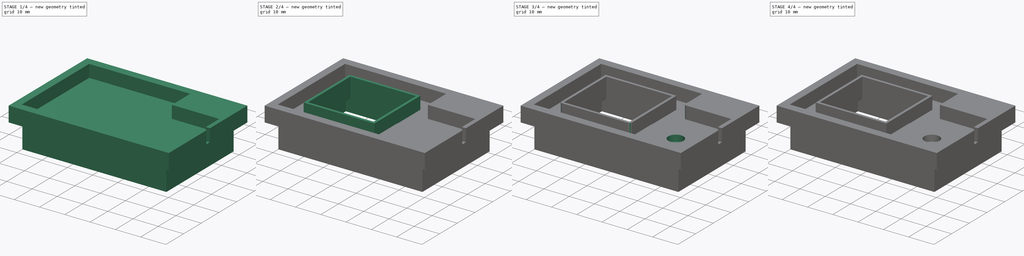
[diagram: build sequence overview — one tinted view per stage of 4, left to right]
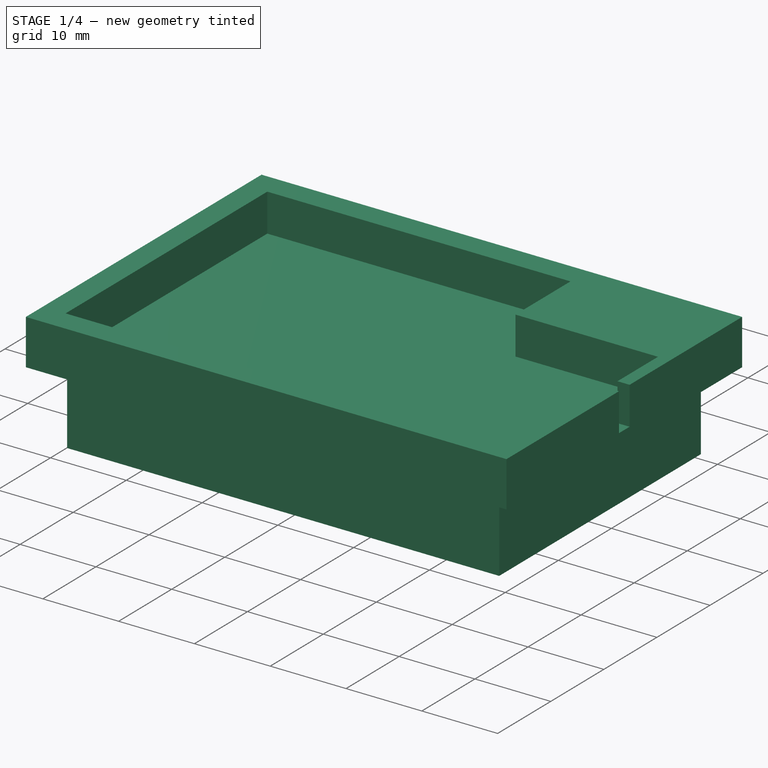
[diagram: stage 1 of 4 — iso view after this stage's code; geometry added in this stage tinted green]
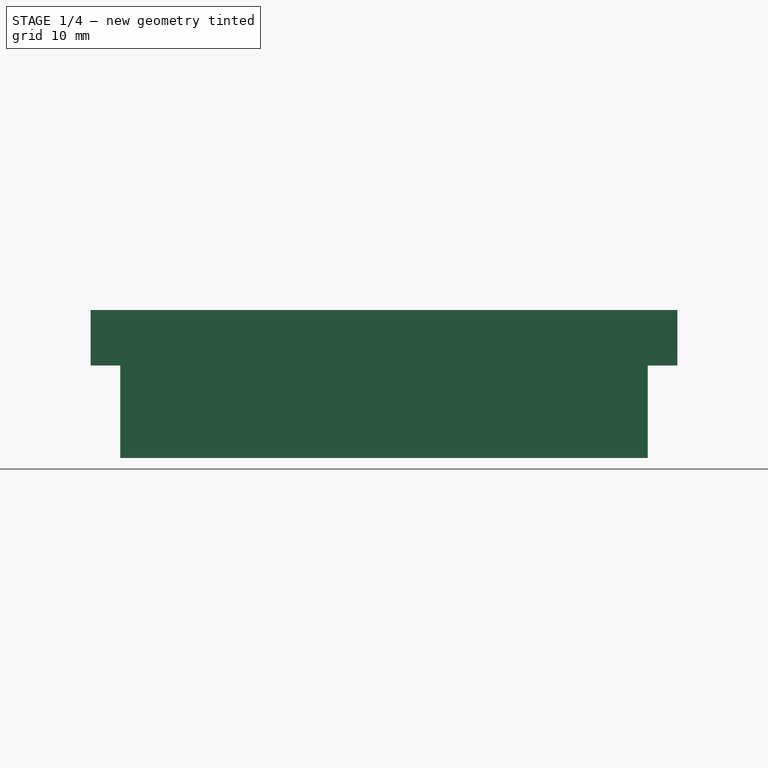
[diagram: stage 1 of 4 — front view after this stage's code; geometry added in this stage tinted green]
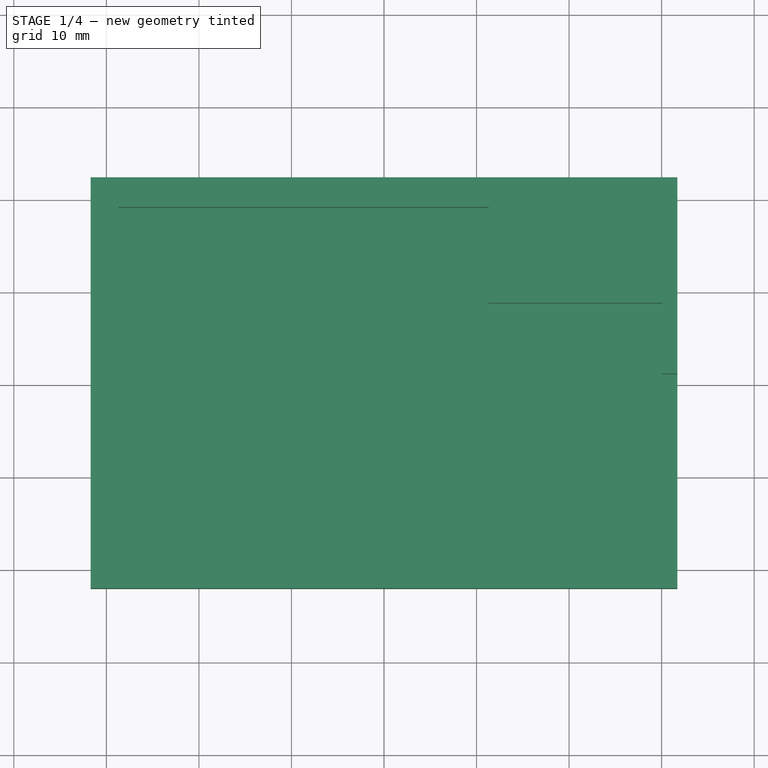
[diagram: stage 1 of 4 — top view after this stage's code; geometry added in this stage tinted green]
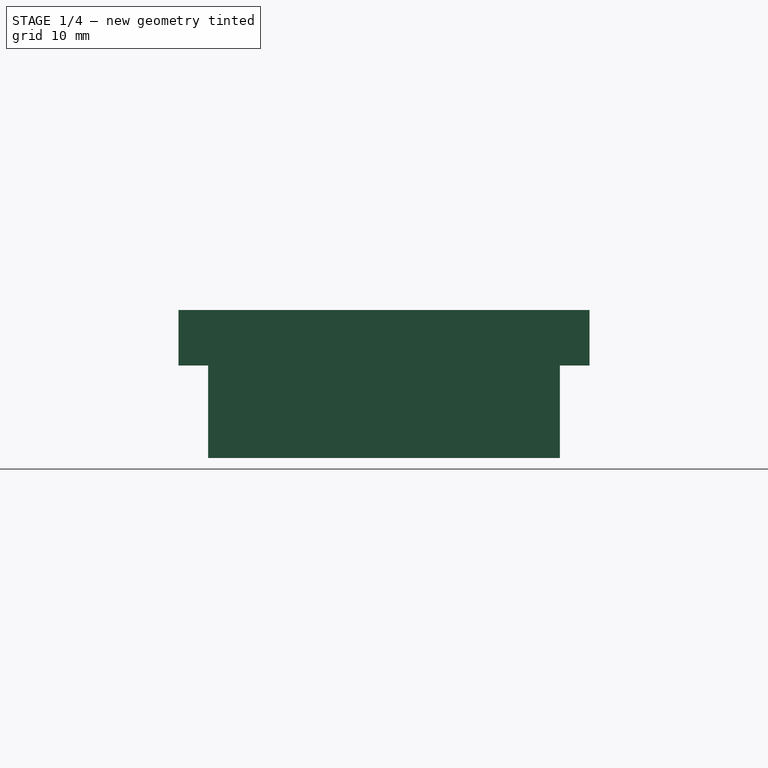
[diagram: stage 1 of 4 — right view after this stage's code; geometry added in this stage tinted green]
FCSTD DOCUMENT  (FreeCAD 0.19R24291 (Git))
Label: bruker7t_fus_single_rectangle_coil3
License: All rights reserved
LicenseURL: http://en.wikipedia.org/wiki/All_rights_reserved
objects: Sketcher::SketchObject×8, PartDesign::Pocket×5, PartDesign::Pad×3, PartDesign::Fillet×3, Part::FeaturePython×1, Part::Cut×1, PartDesign::Body×1
note: 33 computed .brp shape members not serialized (recipe doc carries the construction recipe); baked Part::Feature solids carry a one-line shape summary decoded from their .brp

FEATURE [Sketcher::SketchObject] Sketch
  FullyConstrained = true
  MapMode = 5
  Support = -> [XY_Plane001]
  sketch-geometry (4):
    g0: LineSegment StartX=-31.7 StartY=22.2 StartZ=0 EndX=31.7 EndY=22.2 EndZ=0
    g1: LineSegment StartX=31.7 StartY=22.2 StartZ=0 EndX=31.7 EndY=-22.2 EndZ=0
    g2: LineSegment StartX=31.7 StartY=-22.2 StartZ=0 EndX=-31.7 EndY=-22.2 EndZ=0
    g3: LineSegment StartX=-31.7 StartY=-22.2 StartZ=0 EndX=-31.7 EndY=22.2 EndZ=0
  constraints (10):
    c: Coincident(g0,g1)
    c: Coincident(g1,g2)
    c: Coincident(g2,g3)
    c: Coincident(g3,g0)
    c: Horizontal(g2)
    c: Vertical(g1)
    c: Symmetric(g2,g0,g-1)
    c: Symmetric(g0,g0,g-2)
    c: DistanceX(g0,g0) = 63.4
    c: DistanceY(g3,g3) = 44.4
FEATURE [PartDesign::Pad] Pad  label="top_pad"
  Direction = (1,1,1)
  Length = 6
  Length2 = 0
  Profile = -> Sketch
  Refine = true
  Type = 0
FEATURE [Sketcher::SketchObject] Sketch001
  ExternalGeometry = -> [Pad]
  FullyConstrained = true
  MapMode = 5
  Placement = pos=(0,0,6) rot=(0,0,1;0rad)
  Support = -> [Pad]
  sketch-geometry (12):
    g0: LineSegment StartX=30.1 StartY=1 StartZ=0 EndX=30.1 EndY=8.63 EndZ=0
    g1: LineSegment StartX=30.1 StartY=8.63 StartZ=0 EndX=11.3 EndY=8.63 EndZ=0
    g2: LineSegment StartX=11.3 StartY=-8.63 StartZ=0 EndX=30.1 EndY=-8.63 EndZ=0
    g3: LineSegment StartX=30.1 StartY=-8.63 StartZ=0 EndX=30.1 EndY=-1 EndZ=0
    g4: LineSegment StartX=30.1 StartY=-1 StartZ=0 EndX=42.1 EndY=-1 EndZ=0
    g5: LineSegment StartX=42.1 StartY=-1 StartZ=0 EndX=42.1 EndY=1 EndZ=0
    g6: LineSegment StartX=42.1 StartY=1 StartZ=0 EndX=30.1 EndY=1 EndZ=0
    g7: LineSegment StartX=11.3 StartY=-8.63 StartZ=0 EndX=11.3 EndY=-19 EndZ=0
    g8: LineSegment StartX=11.3 StartY=-19 StartZ=0 EndX=-28.7 EndY=-19 EndZ=0
    g9: LineSegment StartX=-28.7 StartY=-19 StartZ=0 EndX=-28.7 EndY=19 EndZ=0
    g10: LineSegment StartX=-28.7 StartY=19 StartZ=0 EndX=11.3 EndY=19 EndZ=0
    g11: LineSegment StartX=11.3 StartY=19 StartZ=0 EndX=11.3 EndY=8.63 EndZ=0
  constraints (35):
    c: Coincident(g0,g1)
    c: Horizontal(g1)
    c: Horizontal(g2)
    c: Coincident(g2,g3)
    c: Coincident(g3,g4)
    c: Horizontal(g4)
    c: Coincident(g4,g5)
    c: Vertical(g5)
    c: Coincident(g5,g6)
    c: Horizontal(g6)
    c: Vertical(g3)
    c: Vertical(g0)
    c: Equal(g3,g0)
    c: Equal(g1,g2)
    c: DistanceY(g5,g5) = 2
    c: DistanceX(g4,g4) = 12
    c: DistanceX(g2,g2) = 18.8
    c: Coincident(g6,g0)
    c: Coincident(g2,g7)
    c: Vertical(g7)
    c: Coincident(g7,g8)
    c: Horizontal(g8)
    c: Coincident(g8,g9)
    c: Coincident(g9,g10)
    c: Horizontal(g10)
    c: Coincident(g10,g11)
    c: Coincident(g11,g1)
    c: Vertical(g11)
    c: DistanceX(g0,g-3) = 1.6
    c: DistanceY(g0,g-3) = 13.57
    c: DistanceY(g-4,g2) = 13.57
    c: DistanceX(g2,g-4) = 1.6
    c: DistanceX(g-3,g9) = 3
    c: DistanceY(g9,g9) = 38
    c: Symmetric(g8,g9,g-1)
FEATURE [PartDesign::Pocket] Pocket  label="top_pocket"
  BaseFeature = -> Pad
  Length = 5
  Length2 = 100
  Profile = -> Sketch001
  Refine = true
  Type = 0
FEATURE [Sketcher::SketchObject] Sketch002
  FullyConstrained = true
  MapMode = 5
  Placement = pos=(0,0,0) rot=(1,0,0;3.14159rad)
  Support = -> [Pocket]
  sketch-geometry (4):
    g0: LineSegment StartX=-28.5 StartY=19 StartZ=0 EndX=28.5 EndY=19 EndZ=0
    g1: LineSegment StartX=28.5 StartY=19 StartZ=0 EndX=28.5 EndY=-19 EndZ=0
    g2: LineSegment StartX=28.5 StartY=-19 StartZ=0 EndX=-28.5 EndY=-19 EndZ=0
    g3: LineSegment StartX=-28.5 StartY=-19 StartZ=0 EndX=-28.5 EndY=19 EndZ=0
  constraints (10):
    c: Coincident(g0,g1)
    c: Coincident(g1,g2)
    c: Coincident(g2,g3)
    c: Coincident(g3,g0)
    c: Horizontal(g2)
    c: Vertical(g1)
    c: Symmetric(g2,g0,g-1)
    c: Symmetric(g0,g0,g-2)
    c: DistanceY(g3,g3) = 38
    c: DistanceX(g2,g2) = 57
FEATURE [PartDesign::Pad] Pad001  label="bottom_box_pad"
  BaseFeature = -> Pocket
  Direction = (1,1,1)
  Length = 10
  Length2 = 100
  Profile = -> Sketch002
  Refine = true
  Type = 0
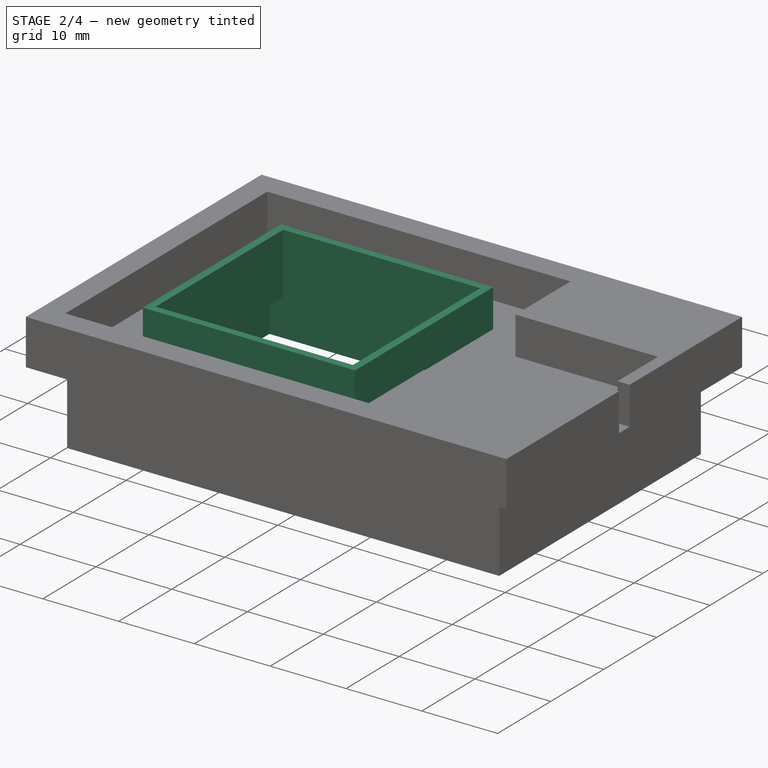
[diagram: stage 2 of 4 — iso view after this stage's code; geometry added in this stage tinted green]
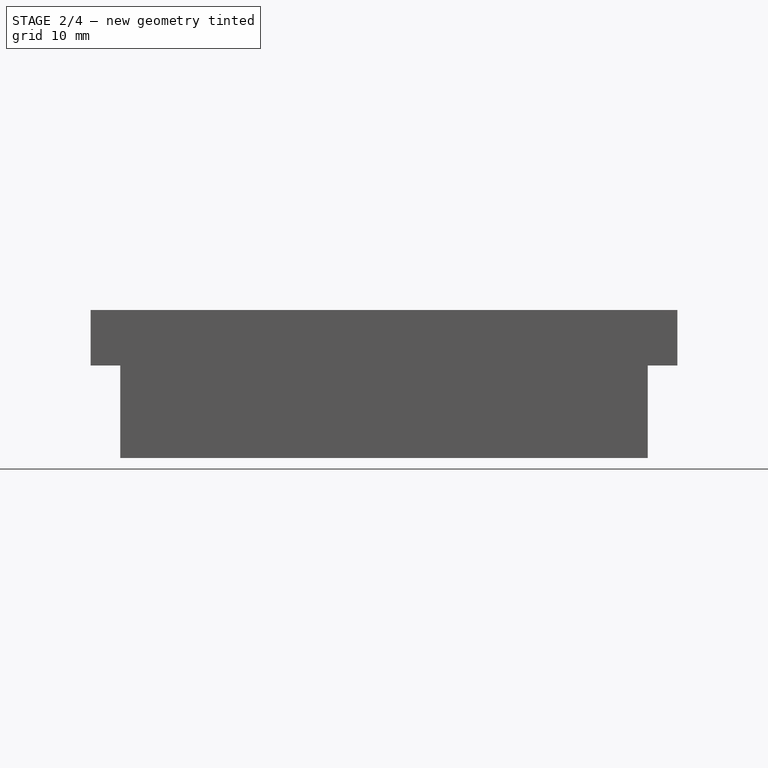
[diagram: stage 2 of 4 — front view after this stage's code; geometry added in this stage tinted green]
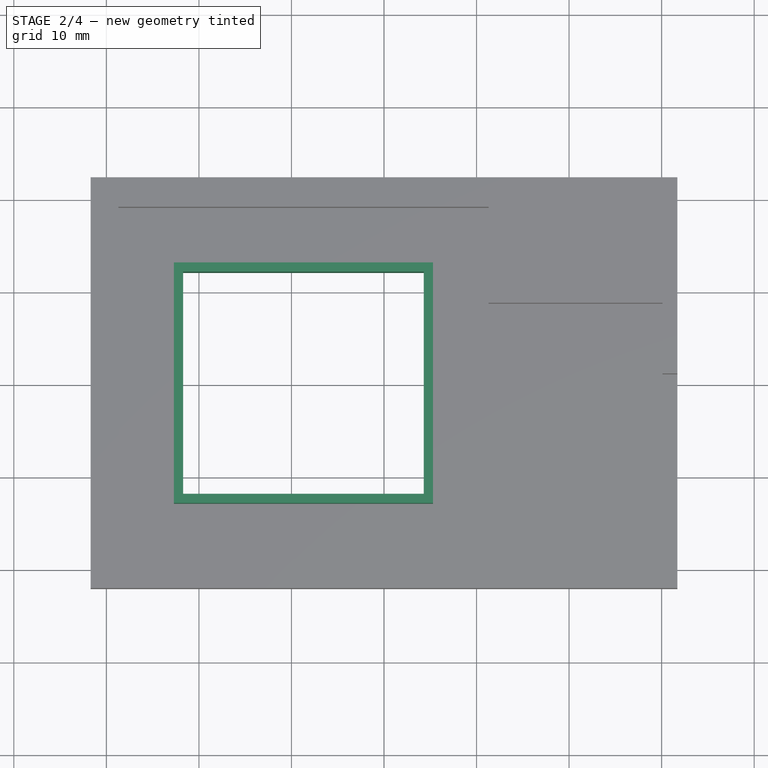
[diagram: stage 2 of 4 — top view after this stage's code; geometry added in this stage tinted green]
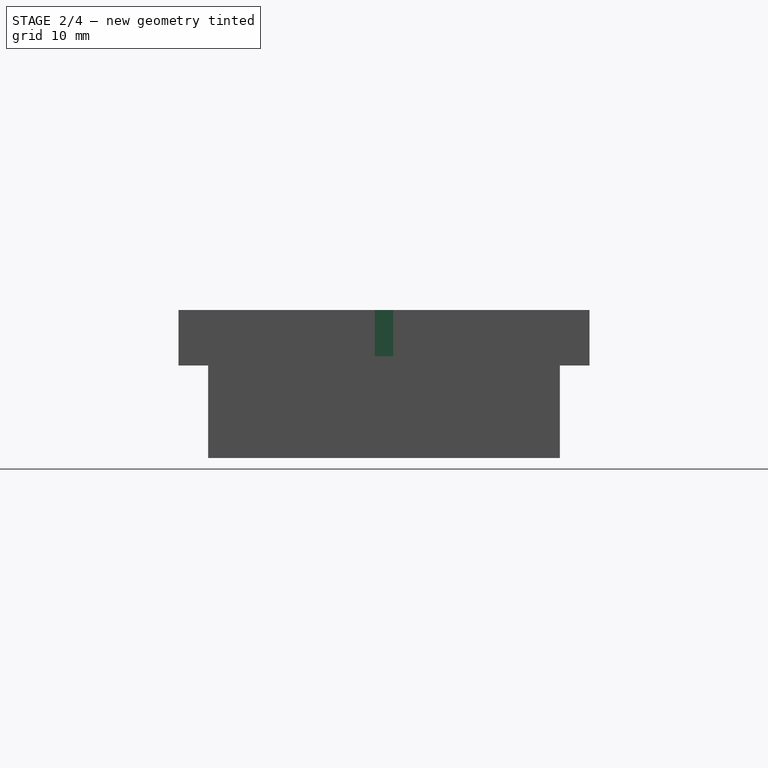
[diagram: stage 2 of 4 — right view after this stage's code; geometry added in this stage tinted green]
FEATURE [Sketcher::SketchObject] Sketch010
  AttachmentOffset = pos=(0,0,-2) rot=(0,0,1;0rad)
  FullyConstrained = false
  MapMode = 5
  Placement = pos=(0,0,-2) rot=(0,0,1;0rad)
  Support = -> [XY_Plane001]
  sketch-geometry (4):
    g0: LineSegment StartX=-27.3341 StartY=17.4424 StartZ=0 EndX=26.2659 EndY=17.4424 EndZ=0
    g1: LineSegment StartX=26.2659 StartY=17.4424 StartZ=0 EndX=26.2659 EndY=-17.1576 EndZ=0
    g2: LineSegment StartX=26.2659 StartY=-17.1576 StartZ=0 EndX=-27.3341 EndY=-17.1576 EndZ=0
    g3: LineSegment StartX=-27.3341 StartY=-17.1576 StartZ=0 EndX=-27.3341 EndY=17.4424 EndZ=0
  constraints (10):
    c: Coincident(g0,g1)
    c: Coincident(g1,g2)
    c: Coincident(g2,g3)
    c: Coincident(g3,g0)
    c: Horizontal(g0)
    c: Horizontal(g2)
    c: Vertical(g1)
    c: Vertical(g3)
    c: DistanceX(g0,g0) = 53.6
    c: DistanceY(g1,g1) = 34.6
FEATURE [PartDesign::Pocket] Pocket005  label="bottom_box_pocket"
  BaseFeature = -> Pad001
  Length = 8
  Length2 = 100
  Profile = -> Sketch010
  Refine = true
  Type = 0
FEATURE [Sketcher::SketchObject] Sketch006
  ExternalGeometry = -> [Pocket005]
  FullyConstrained = true
  MapMode = 5
  Support = -> [XY_Plane001]
  sketch-geometry (4):
    g0: LineSegment StartX=-22.7 StartY=13 StartZ=0 EndX=5.3 EndY=13 EndZ=0
    g1: LineSegment StartX=5.3 StartY=13 StartZ=0 EndX=5.3 EndY=-13 EndZ=0
    g2: LineSegment StartX=5.3 StartY=-13 StartZ=0 EndX=-22.7 EndY=-13 EndZ=0
    g3: LineSegment StartX=-22.7 StartY=-13 StartZ=0 EndX=-22.7 EndY=13 EndZ=0
  constraints (11):
    c: Coincident(g0,g1)
    c: Coincident(g1,g2)
    c: Coincident(g2,g3)
    c: Coincident(g3,g0)
    c: Horizontal(g0)
    c: Horizontal(g2)
    c: Vertical(g3)
    c: Symmetric(g0,g1,g-1)
    c: DistanceY(g1,g1) = 26
    c: DistanceX(g2,g2) = 28
    c: DistanceX(g-3,g0) = 9
FEATURE [PartDesign::Pad] Pad002  label="hole_pad"
  BaseFeature = -> Pocket005
  Direction = (1,1,1)
  Length = 6
  Length2 = 100
  Profile = -> Sketch006
  Refine = true
  Type = 0
FEATURE [Sketcher::SketchObject] Sketch007
  AttachmentOffset = pos=(0,0,6) rot=(0,0,1;0rad)
  ExternalGeometry = -> [Pad001,Pad002]
  FullyConstrained = true
  MapMode = 5
  Placement = pos=(0,0,6) rot=(0,0,1;0rad)
  Support = -> [XY_Plane001]
  sketch-geometry (4):
    g0: LineSegment StartX=-21.7 StartY=12 StartZ=0 EndX=4.3 EndY=12 EndZ=0
    g1: LineSegment StartX=4.3 StartY=12 StartZ=0 EndX=4.3 EndY=-12 EndZ=0
    g2: LineSegment StartX=4.3 StartY=-12 StartZ=0 EndX=-21.7 EndY=-12 EndZ=0
    g3: LineSegment StartX=-21.7 StartY=-12 StartZ=0 EndX=-21.7 EndY=12 EndZ=0
  constraints (12):
    c: Coincident(g0,g1)
    c: Coincident(g1,g2)
    c: Coincident(g2,g3)
    c: Coincident(g3,g0)
    c: Horizontal(g0)
    c: Horizontal(g2)
    c: Vertical(g1)
    c: Vertical(g3)
    c: DistanceX(g0,g-6) = 1
    c: DistanceX(g-7,g0) = 1
    c: DistanceY(g0,g-6) = 1
    c: DistanceY(g-8,g1) = 1
FEATURE [PartDesign::Pocket] Pocket002  label="hole_pocket"
  BaseFeature = -> Pad002
  Length = 6
  Length2 = 100
  Profile = -> Sketch007
  Refine = true
  Type = 1
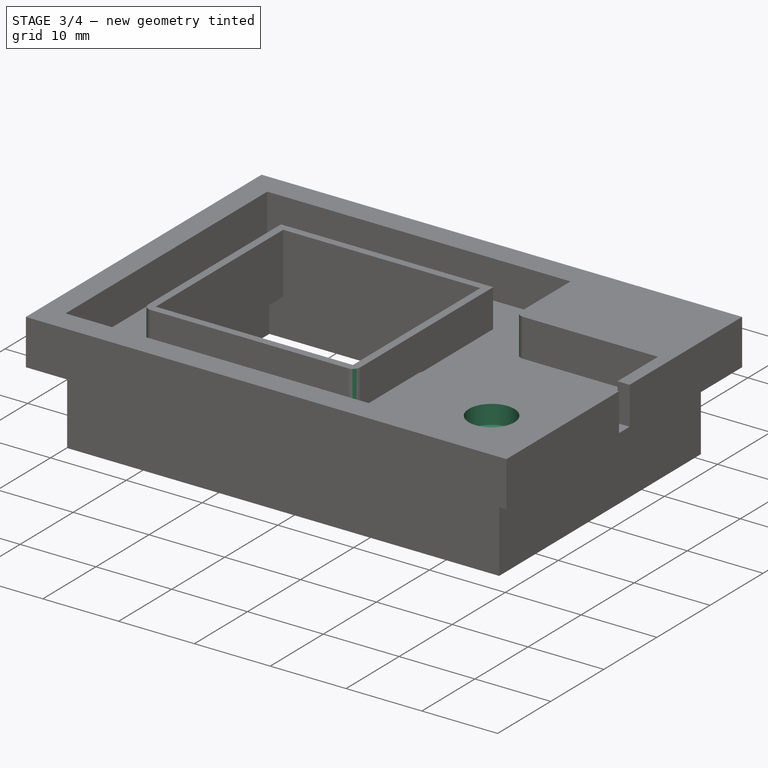
[diagram: stage 3 of 4 — iso view after this stage's code; geometry added in this stage tinted green]
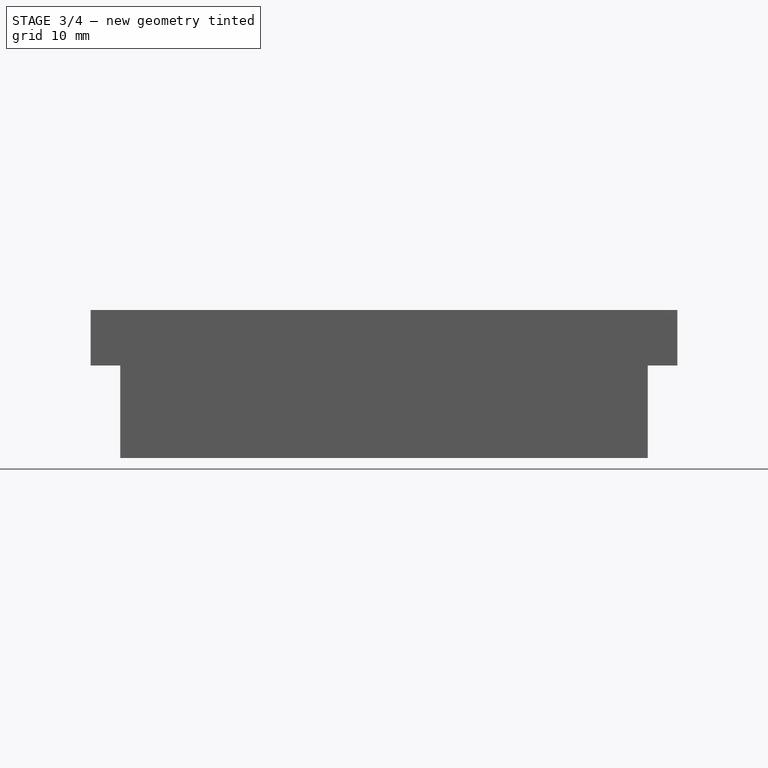
[diagram: stage 3 of 4 — front view after this stage's code; geometry added in this stage tinted green]
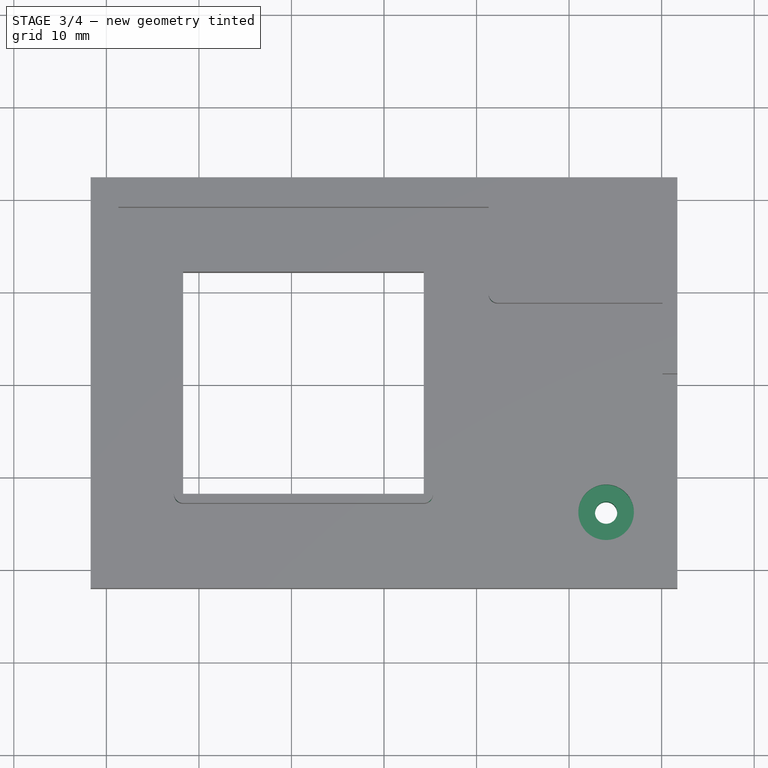
[diagram: stage 3 of 4 — top view after this stage's code; geometry added in this stage tinted green]
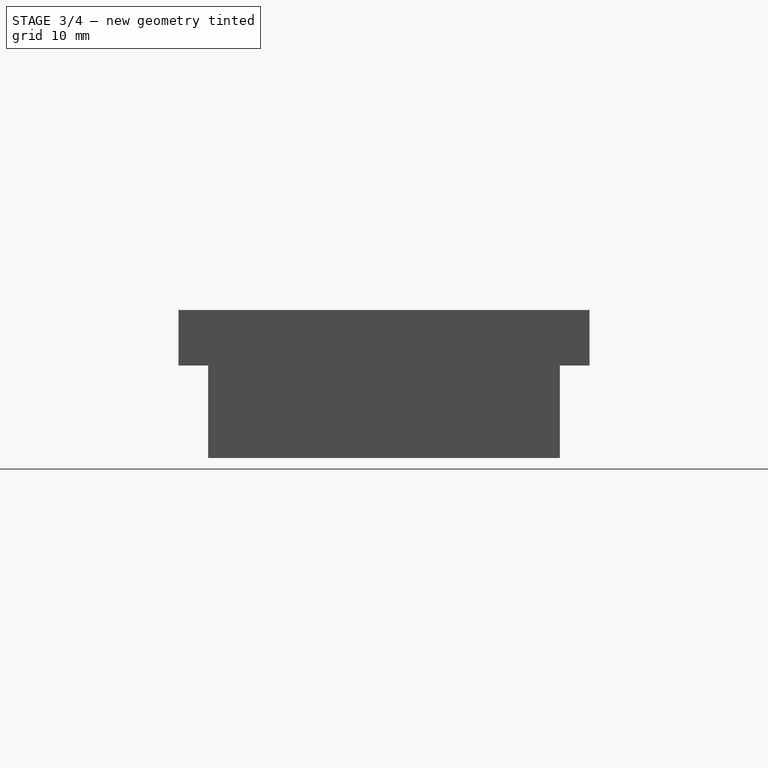
[diagram: stage 3 of 4 — right view after this stage's code; geometry added in this stage tinted green]
FEATURE [PartDesign::Pocket] Pocket003  label="instilling_hole"
  BaseFeature = -> Pocket002
  Length = 5
  Length2 = 100
  Profile = -> Sketch008
  Refine = true
  Type = 1
FEATURE [PartDesign::Pocket] Pocket004  label="instilling_cap"
  BaseFeature = -> Pocket003
  Length = 2.5
  Length2 = 100
  Profile = -> Sketch009
  Refine = true
  Type = 0
FEATURE [PartDesign::Fillet] Fillet
  Base = -> Pocket004 [Edge72,Edge74]
  BaseFeature = -> Pocket004
  Radius = 1
  Refine = true
  SupportTransform = false
FEATURE [PartDesign::Fillet] Fillet001
  Base = -> Fillet [Edge31,Edge52]
  BaseFeature = -> Fillet
  Radius = 1
  Refine = true
  SupportTransform = false
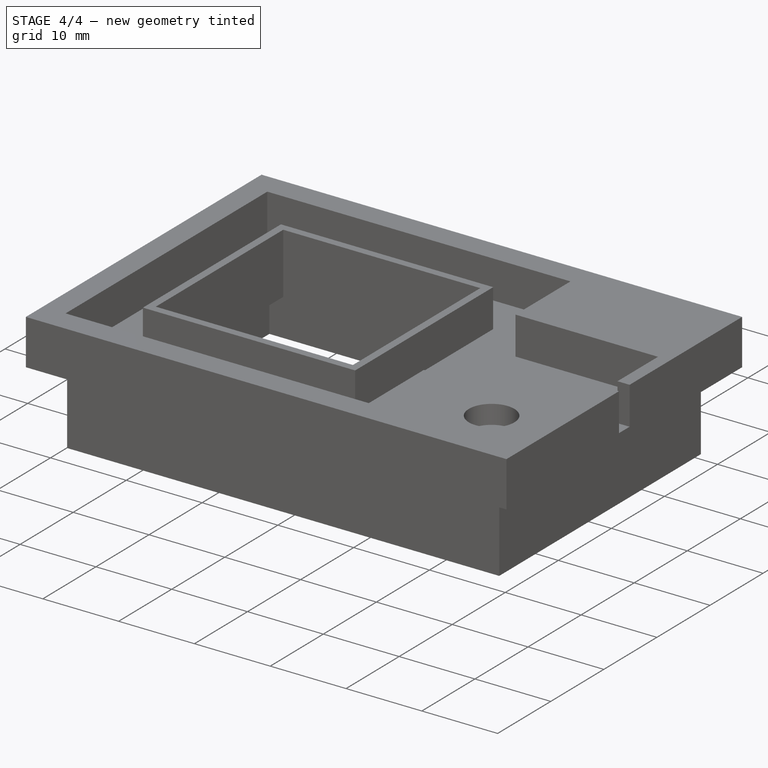
[diagram: stage 4 of 4 — iso view after this stage's code; geometry added in this stage tinted green]
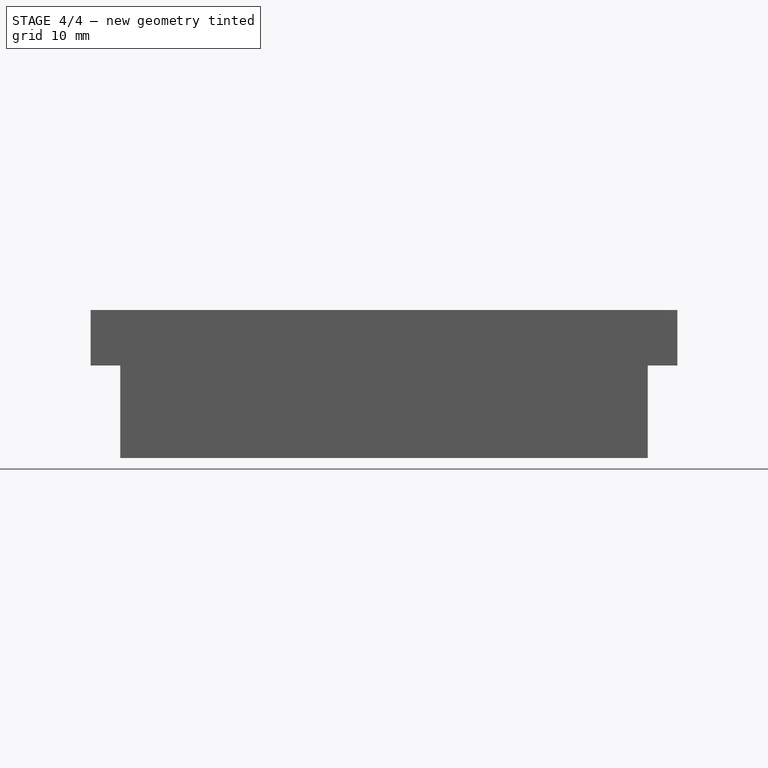
[diagram: stage 4 of 4 — front view after this stage's code; geometry added in this stage tinted green]
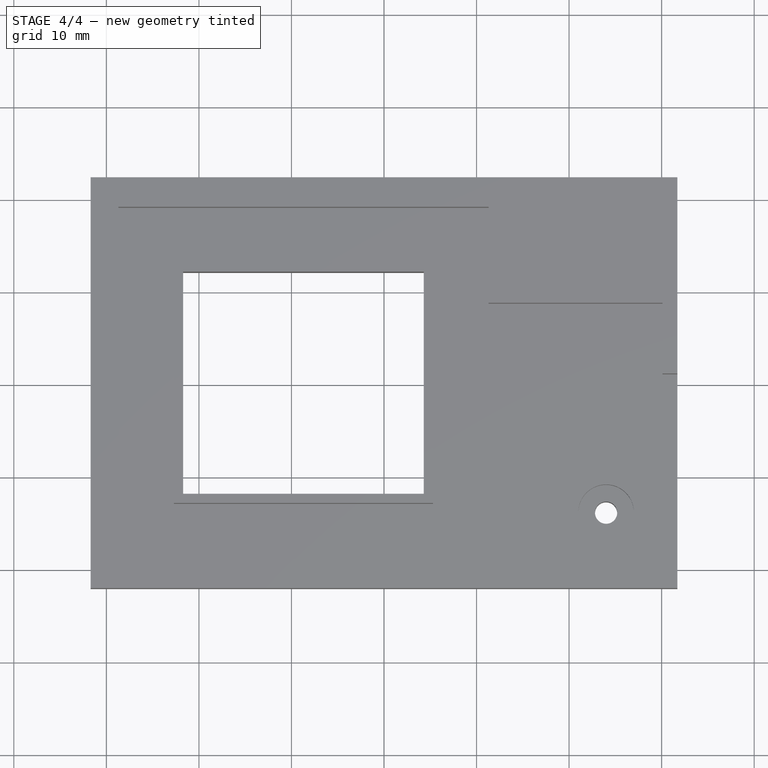
[diagram: stage 4 of 4 — top view after this stage's code; geometry added in this stage tinted green]
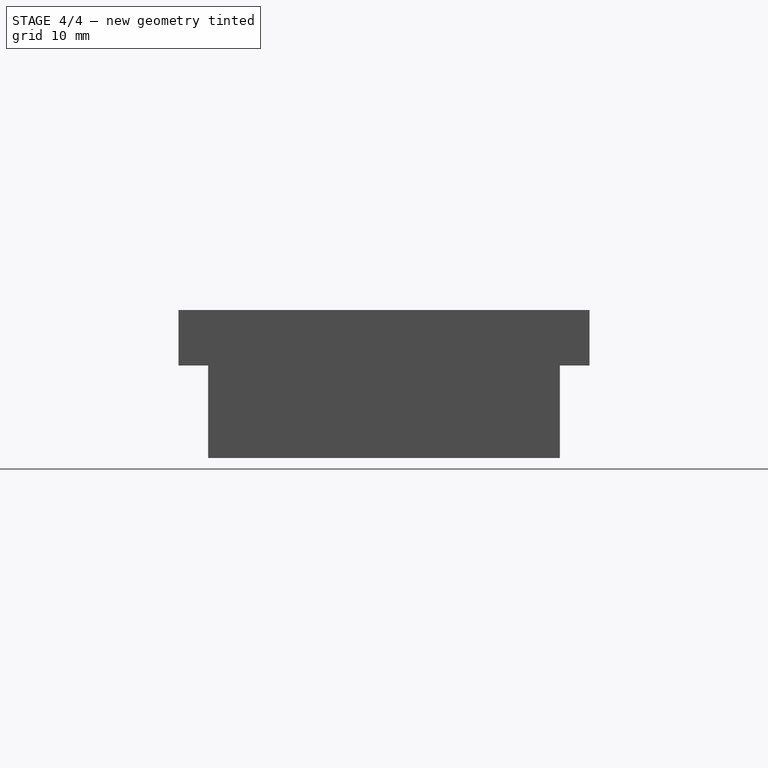
[diagram: stage 4 of 4 — right view after this stage's code; geometry added in this stage tinted green]
FEATURE [Sketcher::SketchObject] Sketch008
  AttachmentOffset = pos=(0,0,6) rot=(0,0,1;0rad)
  FullyConstrained = true
  MapMode = 5
  Placement = pos=(0,0,6) rot=(0,0,1;0rad)
  Support = -> [XY_Plane001]
  sketch-geometry (1):
    g0: Circle CenterX=24 CenterY=-14 CenterZ=0 NormalX=0 NormalY=0 NormalZ=1 AngleXU=0 Radius=1.2
  constraints (3):
    c: DistanceY(g0,g-1) = 14
    c: DistanceX(g-1,g0) = 24
    c: Radius(g0) = 1.2
FEATURE [Sketcher::SketchObject] Sketch009
  AttachmentOffset = pos=(0,0,6) rot=(0,0,1;0rad)
  FullyConstrained = true
  MapMode = 5
  Placement = pos=(0,0,6) rot=(0,0,1;0rad)
  Support = -> [XY_Plane001]
  sketch-geometry (1):
    g0: Circle CenterX=24 CenterY=-14 CenterZ=0 NormalX=0 NormalY=0 NormalZ=1 AngleXU=0 Radius=3
  constraints (3):
    c: DistanceY(g0,g-1) = 14
    c: DistanceX(g-1,g0) = 24
    c: Radius(g0) = 3
FEATURE [Part::FeaturePython] ThreadedRod  label="M3x10.0-ThreadedRod"  # Fasteners workbench fastener (typed FeaturePython)
  Placement = pos=(24,-14,6) rot=(0,0,1;0rad)
  diameter = 4
  invert = false
  length = 10
  matchOuter = false
  offset = 0
  thread = true
FEATURE [Part::Cut] Cut
  Base = -> Pocket004
  Refine = true
  Tool = -> ThreadedRod
FEATURE [PartDesign::Fillet] Fillet002
  Base = -> Fillet001 [Edge54,Edge58]
  BaseFeature = -> Fillet001
  Radius = 1
  Refine = true
  SupportTransform = false
FEATURE [PartDesign::Body] Body
  Group = -> [Sketch,Pad,Sketch001,Pocket,Sketch002,Pad001,Pocket005,Sketch010,Sketch006,Pad002,Sketch007,Pocket002,Sketch008,Pocket003,Sketch009,Pocket004,Fillet,Fillet001,Fillet002]
  Origin = -> Origin001
  Tip = -> Fillet002
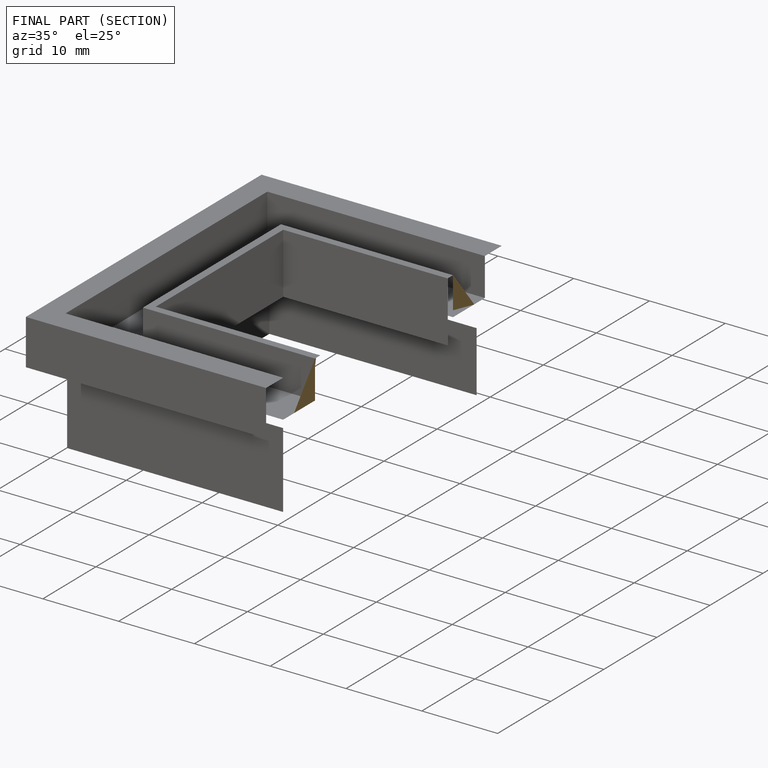
[diagram: finished part — half-section view (interior)]
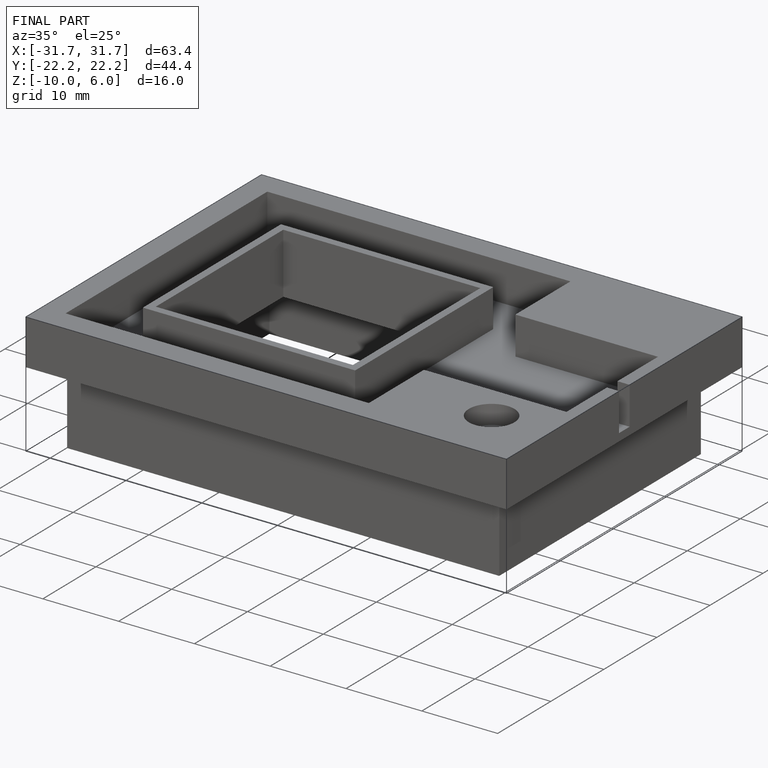
[diagram: finished part — iso view with bounding-box wireframe]
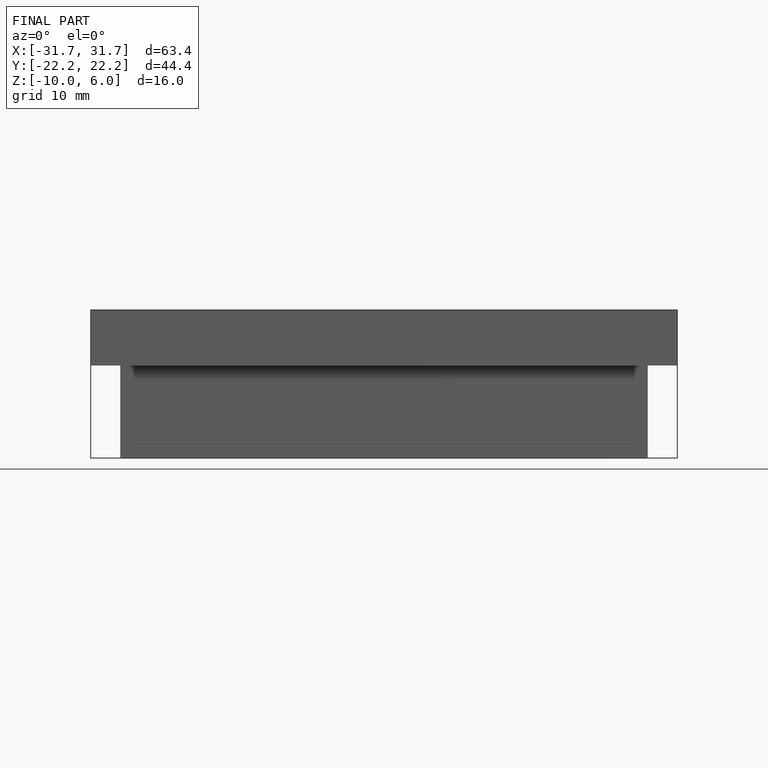
[diagram: finished part — front view with bounding-box wireframe]
